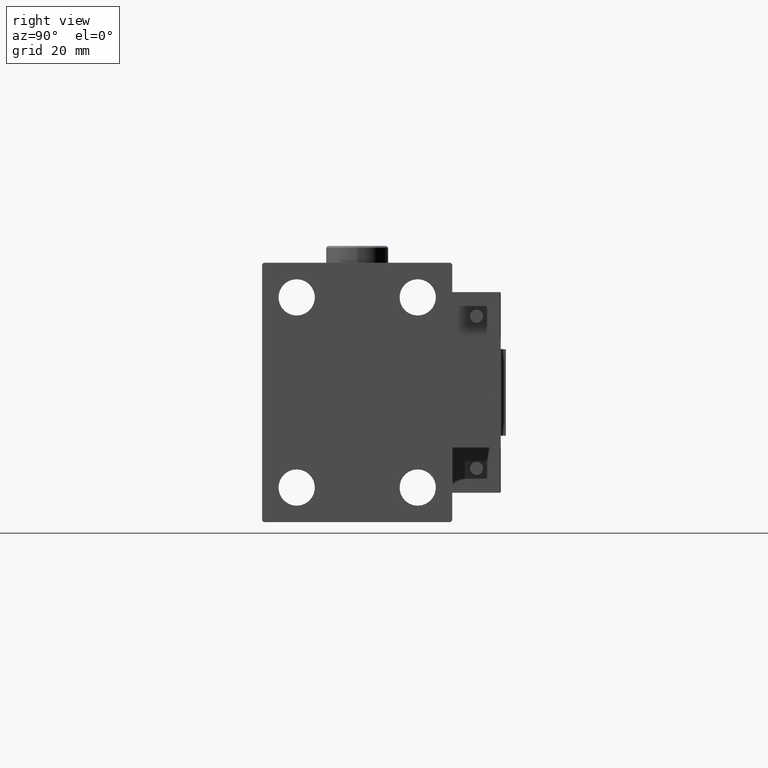
[diagram: clean part render]
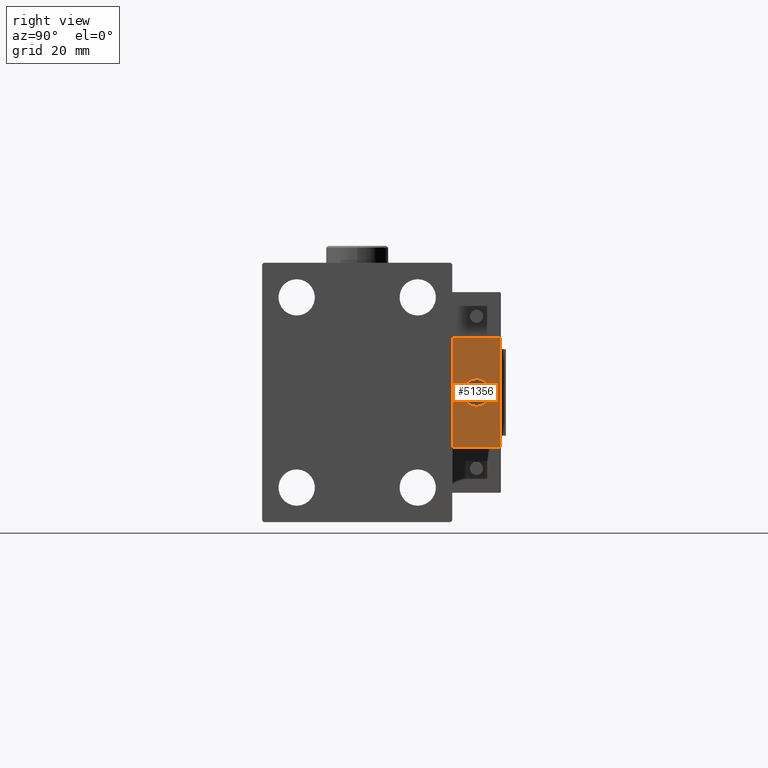
[diagram: same view with one face highlighted and labeled with its STEP entity id]
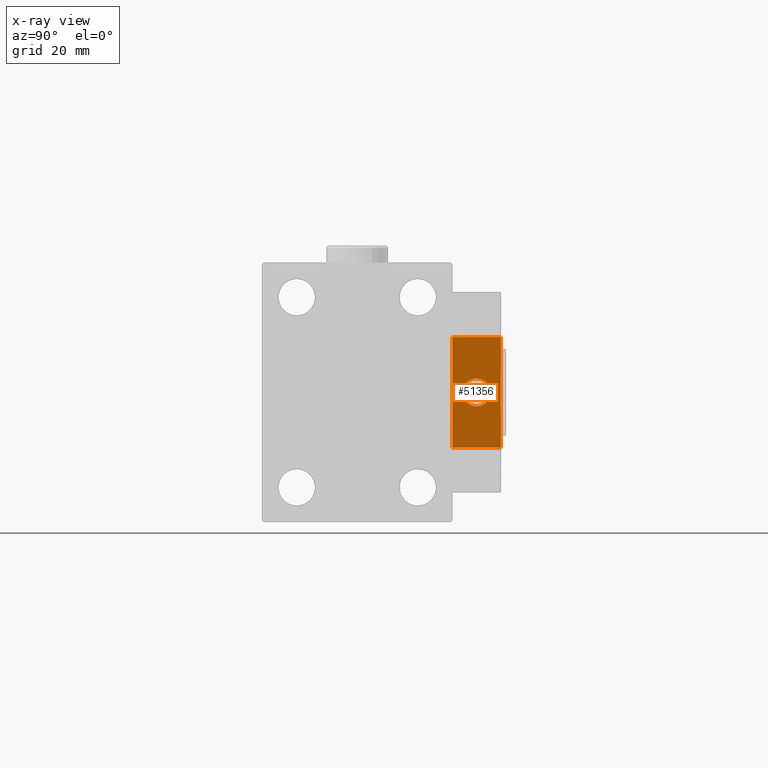
[diagram: x-ray of the same camera — body ghosted, the highlighted face saturated]
A machine part, right view. The second image highlights one B-rep face of the part: STEP entity #51356.
The next image is the same camera in x-ray: the body ghosted, the highlighted face saturated — about 0% of this face is hidden behind the body in this view.
In plain terms, the highlighted planar face has unit normal (-1, 0, 0).
Its self-contained STEP definition (entity closure, byte-faithful):
#2100 = VERTEX_POINT ( 'NONE', #33175 ) ;
#2359 = DIRECTION ( 'NONE',  ( 0.000000000000000000, -1.000000000000000000, 0.000000000000000000 ) ) ;
#4240 = FACE_BOUND ( 'NONE', #46841, .T. ) ;
#4257 = VERTEX_POINT ( 'NONE', #17277 ) ;
#5108 = ORIENTED_EDGE ( 'NONE', *, *, #8132, .F. ) ;
#5496 = DIRECTION ( 'NONE',  ( 0.000000000000000000, -1.000000000000000000, 0.000000000000000000 ) ) ;
#8132 = EDGE_CURVE ( 'NONE', #20657, #4257, #45455, .T. ) ;
#8353 = DIRECTION ( 'NONE',  ( 0.000000000000000000, 0.000000000000000000, 1.000000000000000000 ) ) ;
#8722 = CARTESIAN_POINT ( 'NONE',  ( 10.00000000000000000, -7.000000000000000000, 15.99999999999999289 ) ) ;
#9293 = VERTEX_POINT ( 'NONE', #42587 ) ;
#9437 = LINE ( 'NONE', #13366, #45517 ) ;
#11541 = EDGE_CURVE ( 'NONE', #45795, #16562, #9437, .T. ) ;
#11794 = AXIS2_PLACEMENT_3D ( 'NONE', #16471, #40209, #47770 ) ;
#13366 = CARTESIAN_POINT ( 'NONE',  ( 10.00000000000000000, -7.000000000000000000, 15.99999999999999289 ) ) ;
#15710 = PLANE ( 'NONE',  #11794 ) ;
#16471 = CARTESIAN_POINT ( 'NONE',  ( 10.00000000000000000, 0.000000000000000000, 0.000000000000000000 ) ) ;
#16562 = VERTEX_POINT ( 'NONE', #31377 ) ;
#17214 = CARTESIAN_POINT ( 'NONE',  ( 10.00000000000000000, 7.000000000000000000, -16.00000000000000711 ) ) ;
#17277 = CARTESIAN_POINT ( 'NONE',  ( 10.00000000000000000, 7.000000000000000000, -16.00000000000000711 ) ) ;
#18258 = LINE ( 'NONE', #42001, #40426 ) ;
#20142 = FACE_OUTER_BOUND ( 'NONE', #36009, .T. ) ;
#20657 = VERTEX_POINT ( 'NONE', #38743 ) ;
#24001 = CARTESIAN_POINT ( 'NONE',  ( 10.00000000000000000, 0.000000000000000000, 0.000000000000000000 ) ) ;
#24901 = EDGE_CURVE ( 'NONE', #4257, #16562, #33158, .T. ) ;
#25224 = EDGE_CURVE ( 'NONE', #9293, #2100, #45023, .T. ) ;
#27063 = DIRECTION ( 'NONE',  ( 0.000000000000000000, 0.000000000000000000, 1.000000000000000000 ) ) ;
#28876 = ORIENTED_EDGE ( 'NONE', *, *, #29577, .T. ) ;
#29577 = EDGE_CURVE ( 'NONE', #2100, #9293, #36954, .T. ) ;
#30171 = ORIENTED_EDGE ( 'NONE', *, *, #24901, .F. ) ;
#30424 = VECTOR ( 'NONE', #44684, 1000.000000000000000 ) ;
#31377 = CARTESIAN_POINT ( 'NONE',  ( 10.00000000000000000, -7.000000000000000000, -16.00000000000000711 ) ) ;
#33158 = LINE ( 'NONE', #17214, #42547 ) ;
#33175 = CARTESIAN_POINT ( 'NONE',  ( 10.00000000000000000, 4.898587196589412829E-16, -4.000000000000000000 ) ) ;
#33404 = EDGE_CURVE ( 'NONE', #20657, #45795, #18258, .T. ) ;
#34250 = AXIS2_PLACEMENT_3D ( 'NONE', #42208, #46359, #27063 ) ;
#36009 = EDGE_LOOP ( 'NONE', ( #36682, #30171, #5108, #38335 ) ) ;
#36682 = ORIENTED_EDGE ( 'NONE', *, *, #11541, .T. ) ;
#36954 = CIRCLE ( 'NONE', #42781, 4.000000000000000000 ) ;
#37136 = CARTESIAN_POINT ( 'NONE',  ( 10.00000000000000000, 7.000000000000000000, 15.99999999999999289 ) ) ;
#38335 = ORIENTED_EDGE ( 'NONE', *, *, #33404, .T. ) ;
#38743 = CARTESIAN_POINT ( 'NONE',  ( 10.00000000000000000, 7.000000000000000000, 15.99999999999999289 ) ) ;
#40209 = DIRECTION ( 'NONE',  ( -1.000000000000000000, 0.000000000000000000, -0.000000000000000000 ) ) ;
#40426 = VECTOR ( 'NONE', #2359, 1000.000000000000000 ) ;
#41005 = DIRECTION ( 'NONE',  ( 0.000000000000000000, 0.000000000000000000, -1.000000000000000000 ) ) ;
#42001 = CARTESIAN_POINT ( 'NONE',  ( 10.00000000000000000, 7.000000000000000000, 15.99999999999999289 ) ) ;
#42208 = CARTESIAN_POINT ( 'NONE',  ( 10.00000000000000000, 0.000000000000000000, 0.000000000000000000 ) ) ;
#42547 = VECTOR ( 'NONE', #5496, 1000.000000000000000 ) ;
#42587 = CARTESIAN_POINT ( 'NONE',  ( 10.00000000000000000, 0.000000000000000000, 4.000000000000000000 ) ) ;
#42781 = AXIS2_PLACEMENT_3D ( 'NONE', #24001, #44321, #8353 ) ;
#44321 = DIRECTION ( 'NONE',  ( -1.000000000000000000, 0.000000000000000000, 0.000000000000000000 ) ) ;
#44684 = DIRECTION ( 'NONE',  ( 0.000000000000000000, 0.000000000000000000, -1.000000000000000000 ) ) ;
#45023 = CIRCLE ( 'NONE', #34250, 4.000000000000000000 ) ;
#45455 = LINE ( 'NONE', #37136, #30424 ) ;
#45517 = VECTOR ( 'NONE', #41005, 1000.000000000000000 ) ;
#45795 = VERTEX_POINT ( 'NONE', #8722 ) ;
#45800 = ORIENTED_EDGE ( 'NONE', *, *, #25224, .T. ) ;
#46359 = DIRECTION ( 'NONE',  ( -1.000000000000000000, 0.000000000000000000, 0.000000000000000000 ) ) ;
#46841 = EDGE_LOOP ( 'NONE', ( #45800, #28876 ) ) ;
#47770 = DIRECTION ( 'NONE',  ( -0.000000000000000000, 0.000000000000000000, 1.000000000000000000 ) ) ;
#51356 = ADVANCED_FACE ( 'NONE', ( #4240, #20142 ), #15710, .F. ) ;